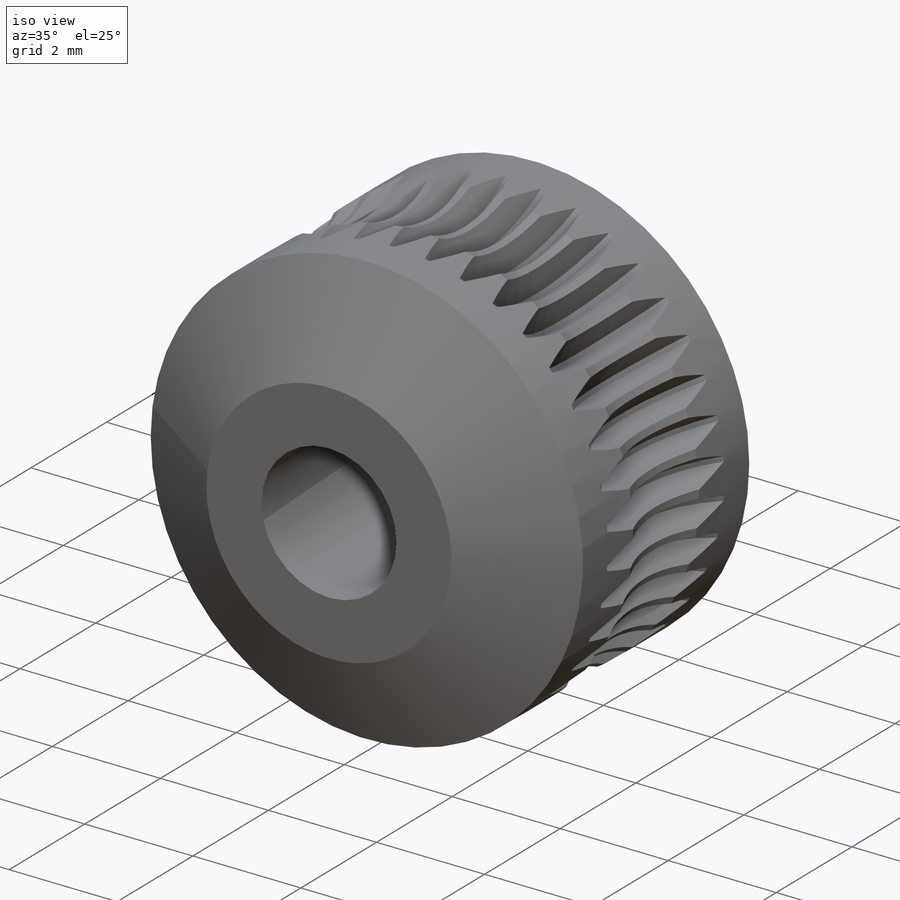
[diagram: iso view]
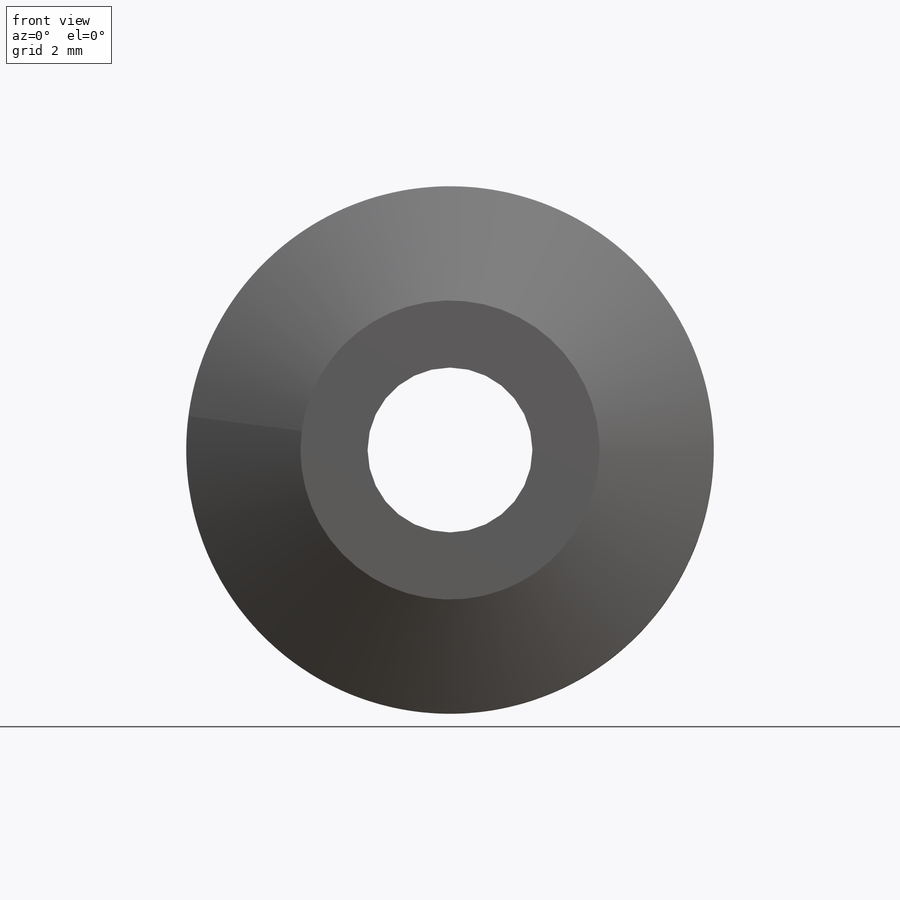
[diagram: front view]
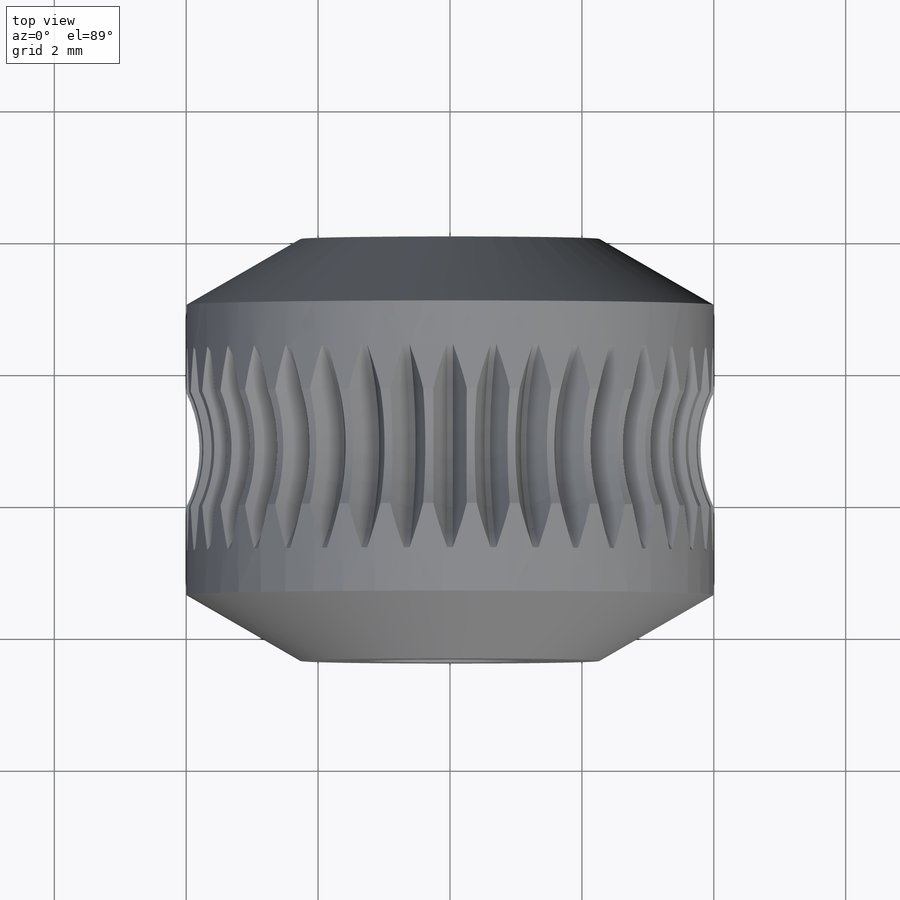
[diagram: top view]
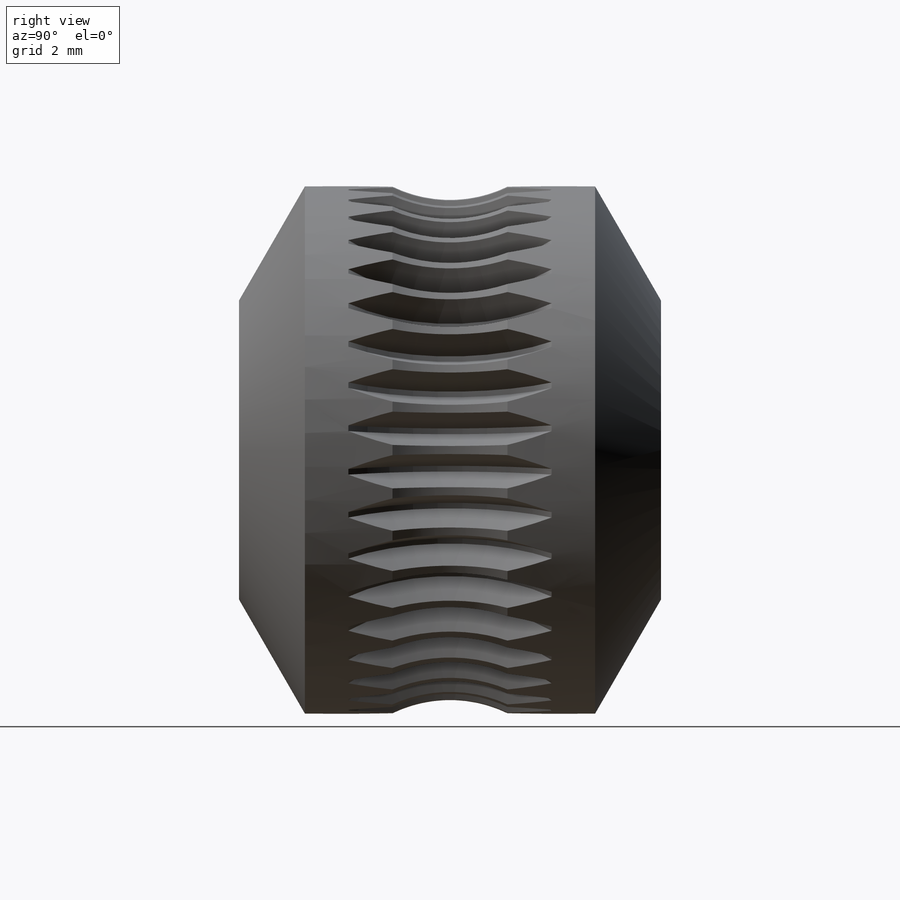
[diagram: right view]
SOLIDWORKS PART (.sldprt)
format: sldprt  version: not decoded by parser v0  size: 550,400 bytes
history: native  units: mm
features: sketch x3, chamfer x2, cut_revolve x2, material x1, extrude x1, plane x1, pattern_circular x1 (+13 scaffold rows collapsed)
feature tree (24):
  scaffold x13  (default folders/planes/origin — collapsed)
  material  "Material <not specified>"
  sketch  "Sketch1"  dims[D1=8.0mm D2=2.5mm]
  extrude  "Boss-Extrude1"  Depth=6.4mm
  chamfer  "Chamfer1"  Distance=1mm Angle=60deg
  plane  "Plane1"  Offset=3.2mm
  sketch  "Sketch2"  dims[D1=4.0mm D2=5.8mm]
  cut_revolve  "Cut-Revolve1"  Angle=360deg
  sketch  "Sketch3"  dims[c1.D1=2.0mm c1.D2=5.8mm c1.D3=0.0875mm c1.D4=0.37mm c1.D5=0.37mm c2.D5=60.0deg]
  cut_revolve  "Cut-Revolve2"  Angle=360deg
  pattern_circular  "CirPattern1"  Count=38 Angle=360deg
  chamfer  "Chamfer2"  Distance=1mm Angle=60deg
decode coverage: 9 of 9 modeling features carry decoded parameters
note: suppression state not decoded; provenance and decode notes live in map.json
